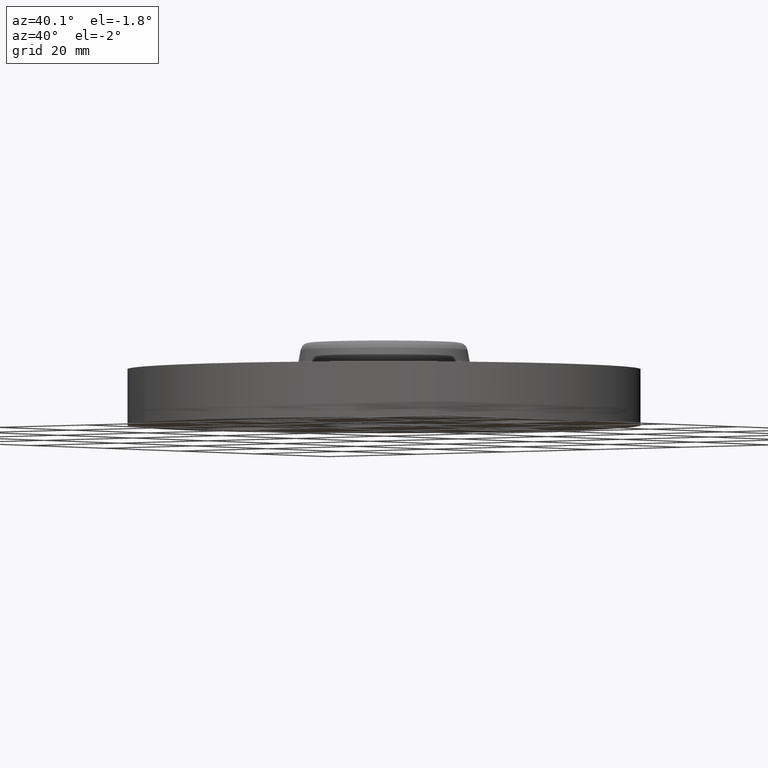
[diagram: clean part render]
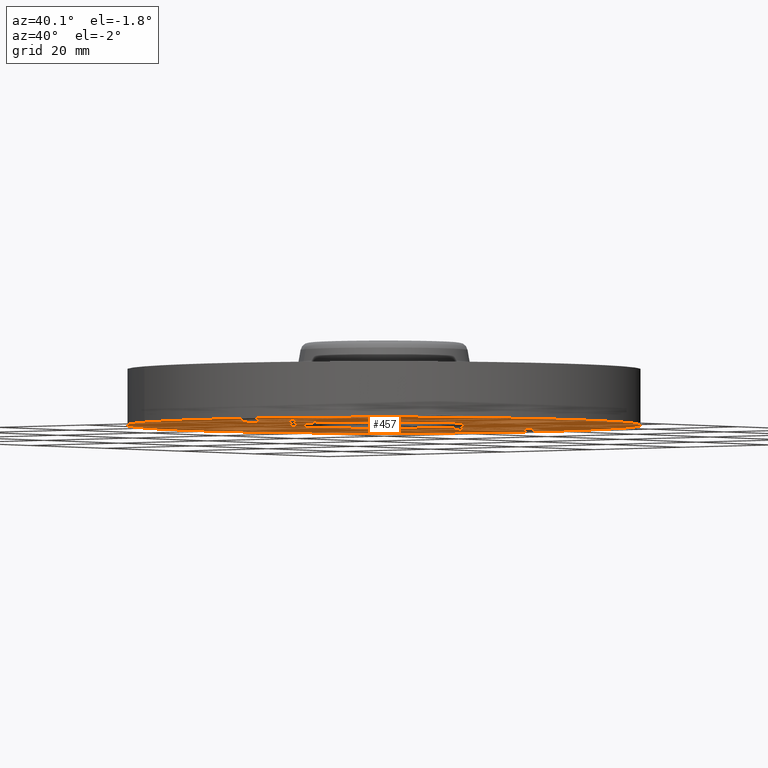
[diagram: same view with one face highlighted and labeled with its STEP entity id]
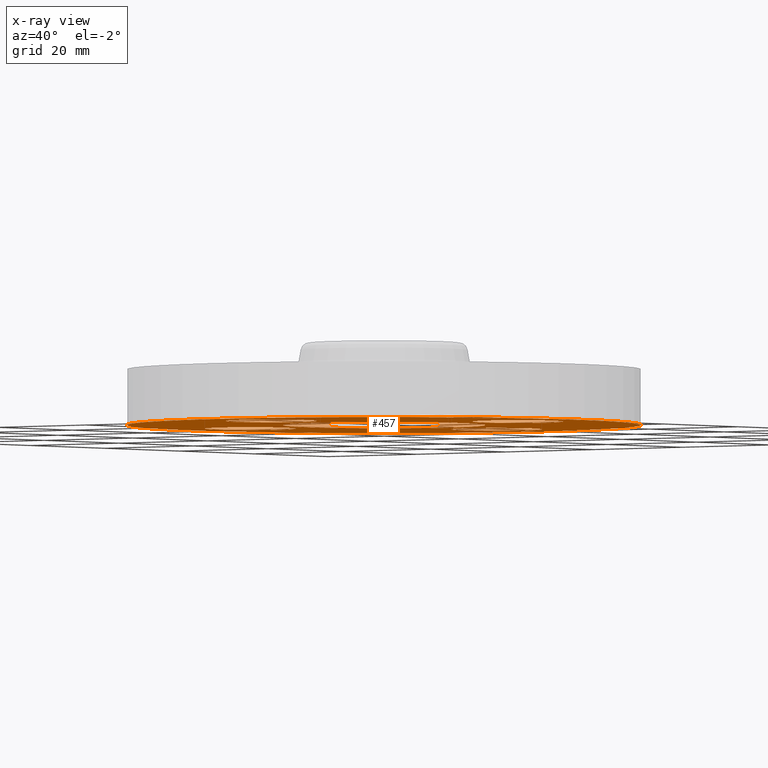
[diagram: x-ray of the same camera — body ghosted, the highlighted face saturated]
A machine part, auxiliary view. The second image highlights one B-rep face of the part: STEP entity #457.
The next image is the same camera in x-ray: the body ghosted, the highlighted face saturated — about 0% of this face is hidden behind the body in this view.
In plain terms, the highlighted planar face has unit normal (0, 0, -1).
Its self-contained STEP definition (entity closure, byte-faithful):
#51=AXIS2_PLACEMENT_3D('Circle Axis2P3D',#49,#50,$) ;
#77=AXIS2_PLACEMENT_3D('Circle Axis2P3D',#75,#76,$) ;
#99=AXIS2_PLACEMENT_3D('Circle Axis2P3D',#97,#98,$) ;
#134=AXIS2_PLACEMENT_3D('Circle Axis2P3D',#132,#133,$) ;
#366=AXIS2_PLACEMENT_3D('Plane Axis2P3D',#363,#364,#365) ;
#370=AXIS2_PLACEMENT_3D('Circle Axis2P3D',#368,#369,$) ;
#379=AXIS2_PLACEMENT_3D('Circle Axis2P3D',#377,#378,$) ;
#405=AXIS2_PLACEMENT_3D('Circle Axis2P3D',#403,#404,$) ;
#414=AXIS2_PLACEMENT_3D('Circle Axis2P3D',#412,#413,$) ;
#423=AXIS2_PLACEMENT_3D('Circle Axis2P3D',#421,#422,$) ;
#432=AXIS2_PLACEMENT_3D('Circle Axis2P3D',#430,#431,$) ;
#441=AXIS2_PLACEMENT_3D('Circle Axis2P3D',#439,#440,$) ;
#450=AXIS2_PLACEMENT_3D('Circle Axis2P3D',#448,#449,$) ;
#44=CARTESIAN_POINT('Vertex',(0.917949405818,0.148621916968,0.)) ;
#49=CARTESIAN_POINT('Axis2P3D Location',(1.19,0.,0.)) ;
#53=CARTESIAN_POINT('Vertex',(1.46205059419,-0.148621916968,0.)) ;
#75=CARTESIAN_POINT('Axis2P3D Location',(1.19,0.,0.)) ;
#97=CARTESIAN_POINT('Axis2P3D Location',(0.,0.,1.04902962957E-016)) ;
#101=CARTESIAN_POINT('Vertex',(-0.838994692561,-1.53576948331,1.39870617276E-016)) ;
#103=CARTESIAN_POINT('Vertex',(0.838994692561,1.53576948331,1.39870617276E-016)) ;
#132=CARTESIAN_POINT('Axis2P3D Location',(0.,0.,1.04902962957E-016)) ;
#363=CARTESIAN_POINT('Axis2P3D Location',(0.,0.440000000002,0.)) ;
#368=CARTESIAN_POINT('Axis2P3D Location',(0.,0.,0.)) ;
#372=CARTESIAN_POINT('Vertex',(-0.330803621638,-0.605531967707,0.)) ;
#374=CARTESIAN_POINT('Vertex',(0.330803621638,0.605531967707,0.)) ;
#377=CARTESIAN_POINT('Axis2P3D Location',(0.,0.,0.)) ;
#403=CARTESIAN_POINT('Axis2P3D Location',(6.99353086378E-017,-1.19,0.)) ;
#407=CARTESIAN_POINT('Vertex',(0.148621916968,-0.917949405818,0.)) ;
#409=CARTESIAN_POINT('Vertex',(-0.148621916968,-1.46205059419,0.)) ;
#412=CARTESIAN_POINT('Axis2P3D Location',(-2.09805925913E-016,-1.19,0.)) ;
#421=CARTESIAN_POINT('Axis2P3D Location',(-1.19,-6.99353086378E-017,0.)) ;
#425=CARTESIAN_POINT('Vertex',(-0.917949405818,-0.148621916968,0.)) ;
#427=CARTESIAN_POINT('Vertex',(-1.46205059419,0.148621916968,0.)) ;
#430=CARTESIAN_POINT('Axis2P3D Location',(-1.19,-2.09805925913E-016,0.)) ;
#439=CARTESIAN_POINT('Axis2P3D Location',(-1.39870617276E-016,1.19,0.)) ;
#443=CARTESIAN_POINT('Vertex',(-0.148621916968,0.917949405818,0.)) ;
#445=CARTESIAN_POINT('Vertex',(0.148621916968,1.46205059419,0.)) ;
#448=CARTESIAN_POINT('Axis2P3D Location',(1.04902962957E-016,1.19,0.)) ;
#50=DIRECTION('Axis2P3D Direction',(0.,-0.,-0.0393700787402)) ;
#76=DIRECTION('Axis2P3D Direction',(0.,-0.,-0.0393700787402)) ;
#98=DIRECTION('Axis2P3D Direction',(0.,0.,-0.0393700787402)) ;
#133=DIRECTION('Axis2P3D Direction',(0.,0.,-0.0393700787402)) ;
#364=DIRECTION('Axis2P3D Direction',(0.,0.,-0.0393700787402)) ;
#365=DIRECTION('Axis2P3D XDirection',(0.0393700787402,0.,0.)) ;
#369=DIRECTION('Axis2P3D Direction',(0.,0.,-0.0393700787402)) ;
#378=DIRECTION('Axis2P3D Direction',(0.,0.,-0.0393700787402)) ;
#404=DIRECTION('Axis2P3D Direction',(0.,0.,-0.0393700787402)) ;
#413=DIRECTION('Axis2P3D Direction',(0.,0.,-0.0393700787402)) ;
#422=DIRECTION('Axis2P3D Direction',(0.,0.,-0.0393700787402)) ;
#431=DIRECTION('Axis2P3D Direction',(0.,0.,-0.0393700787402)) ;
#440=DIRECTION('Axis2P3D Direction',(0.,0.,-0.0393700787402)) ;
#449=DIRECTION('Axis2P3D Direction',(0.,0.,-0.0393700787402)) ;
#392=ORIENTED_EDGE('',*,*,#105,.T.) ;
#393=ORIENTED_EDGE('',*,*,#136,.T.) ;
#396=ORIENTED_EDGE('',*,*,#79,.F.) ;
#397=ORIENTED_EDGE('',*,*,#55,.F.) ;
#400=ORIENTED_EDGE('',*,*,#381,.F.) ;
#401=ORIENTED_EDGE('',*,*,#376,.F.) ;
#418=ORIENTED_EDGE('',*,*,#411,.F.) ;
#419=ORIENTED_EDGE('',*,*,#416,.F.) ;
#436=ORIENTED_EDGE('',*,*,#429,.F.) ;
#437=ORIENTED_EDGE('',*,*,#434,.F.) ;
#454=ORIENTED_EDGE('',*,*,#447,.F.) ;
#455=ORIENTED_EDGE('',*,*,#452,.F.) ;
#398=FACE_BOUND('',#395,.T.) ;
#402=FACE_BOUND('',#399,.T.) ;
#420=FACE_BOUND('',#417,.T.) ;
#438=FACE_BOUND('',#435,.T.) ;
#456=FACE_BOUND('',#453,.T.) ;
#457=ADVANCED_FACE('PartBody',(#394,#398,#402,#420,#438,#456),#367,.T.) ;
#52=CIRCLE('generated circle',#51,0.310000000001) ;
#78=CIRCLE('generated circle',#77,0.310000000001) ;
#100=CIRCLE('generated circle',#99,1.75000000001) ;
#135=CIRCLE('generated circle',#134,1.75000000001) ;
#371=CIRCLE('generated circle',#370,0.690000000003) ;
#380=CIRCLE('generated circle',#379,0.690000000003) ;
#406=CIRCLE('generated circle',#405,0.310000000001) ;
#415=CIRCLE('generated circle',#414,0.310000000001) ;
#424=CIRCLE('generated circle',#423,0.310000000001) ;
#433=CIRCLE('generated circle',#432,0.310000000001) ;
#442=CIRCLE('generated circle',#441,0.310000000001) ;
#451=CIRCLE('generated circle',#450,0.310000000001) ;
#55=EDGE_CURVE('',#45,#54,#52,.T.) ;
#79=EDGE_CURVE('',#54,#45,#78,.T.) ;
#105=EDGE_CURVE('',#102,#104,#100,.T.) ;
#136=EDGE_CURVE('',#104,#102,#135,.T.) ;
#376=EDGE_CURVE('',#373,#375,#371,.T.) ;
#381=EDGE_CURVE('',#375,#373,#380,.T.) ;
#411=EDGE_CURVE('',#408,#410,#406,.T.) ;
#416=EDGE_CURVE('',#410,#408,#415,.T.) ;
#429=EDGE_CURVE('',#426,#428,#424,.T.) ;
#434=EDGE_CURVE('',#428,#426,#433,.T.) ;
#447=EDGE_CURVE('',#444,#446,#442,.T.) ;
#452=EDGE_CURVE('',#446,#444,#451,.T.) ;
#391=EDGE_LOOP('',(#392,#393)) ;
#395=EDGE_LOOP('',(#396,#397)) ;
#399=EDGE_LOOP('',(#400,#401)) ;
#417=EDGE_LOOP('',(#418,#419)) ;
#435=EDGE_LOOP('',(#436,#437)) ;
#453=EDGE_LOOP('',(#454,#455)) ;
#394=FACE_OUTER_BOUND('',#391,.T.) ;
#367=PLANE('',#366) ;
#45=VERTEX_POINT('',#44) ;
#54=VERTEX_POINT('',#53) ;
#102=VERTEX_POINT('',#101) ;
#104=VERTEX_POINT('',#103) ;
#373=VERTEX_POINT('',#372) ;
#375=VERTEX_POINT('',#374) ;
#408=VERTEX_POINT('',#407) ;
#410=VERTEX_POINT('',#409) ;
#426=VERTEX_POINT('',#425) ;
#428=VERTEX_POINT('',#427) ;
#444=VERTEX_POINT('',#443) ;
#446=VERTEX_POINT('',#445) ;